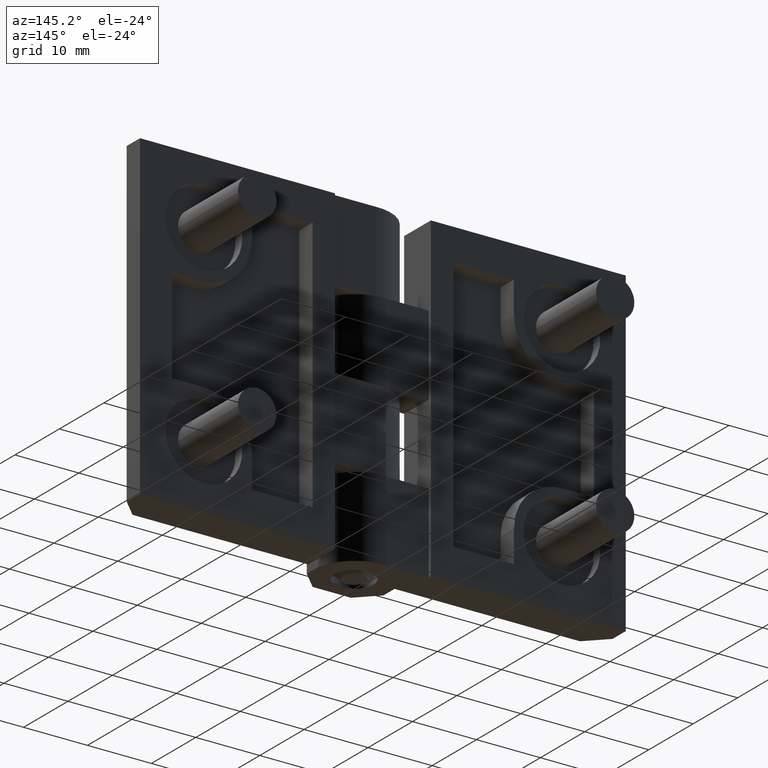
[diagram: clean part render]
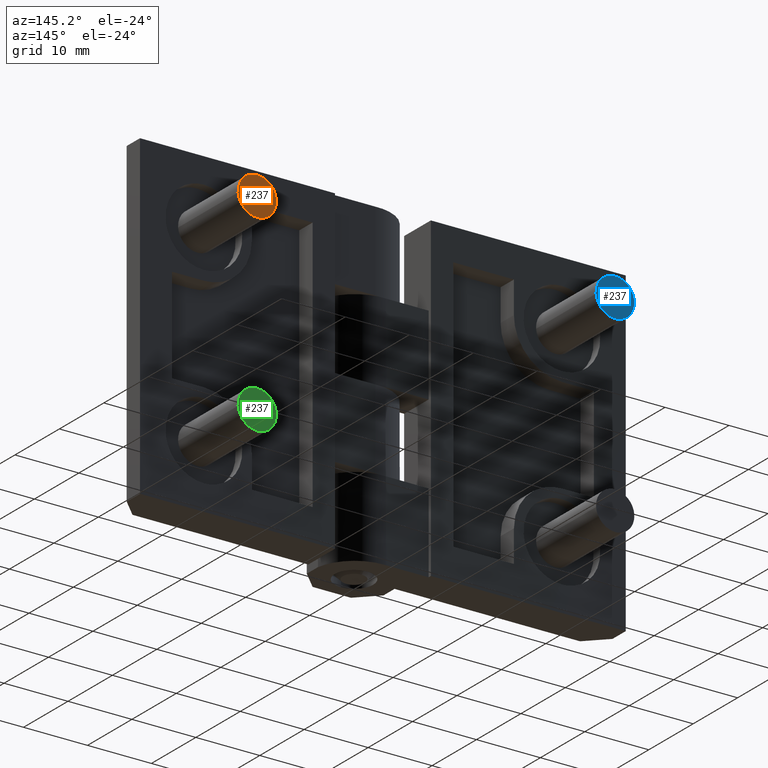
[diagram: same view with three faces highlighted in distinct colors, each labeled with its STEP entity id]
A machine part, auxiliary view with three faces highlighted in distinct colors.
Their STEP definitions:

[orange] entity #237 — the highlighted face is a freeform B-spline surface patch.
#62=CARTESIAN_POINT('',(-28.0,18.500000000000000,12.999999999939989));
#63=VERTEX_POINT('',#62);
#64=CARTESIAN_POINT('',(-30.990752001193002,18.500000000000000,10.235377287204649));
#65=VERTEX_POINT('',#64);
#66=CARTESIAN_POINT('',(-28.0,18.500000000000000,12.999999999939989));
#67=CARTESIAN_POINT('',(-30.773171474823705,18.499999999999996,12.999999999939991));
#68=CARTESIAN_POINT('',(-30.990752001192998,18.500000000000004,10.235377287204653));
#76=(BOUNDED_CURVE()B_SPLINE_CURVE(2,(#66,#67,#68),.UNSPECIFIED.,.F.,.U.)B_SPLINE_CURVE_WITH_KNOTS((3,3),(0.0,0.236331300623467),.UNSPECIFIED.)CURVE()GEOMETRIC_REPRESENTATION_ITEM()RATIONAL_B_SPLINE_CURVE((1.0,0.723120658616093,0.969723356152407))REPRESENTATION_ITEM(''));
#77=EDGE_CURVE('',#63,#65,#76,.T.);
#118=CARTESIAN_POINT('',(-25.009247998806998,18.500000000000000,9.764622712675324));
#119=VERTEX_POINT('',#118);
#125=CARTESIAN_POINT('',(-25.009247998806998,18.499999999999996,9.764622712675324));
#126=CARTESIAN_POINT('',(-25.0,18.499999999999996,9.882129678835476));
#127=CARTESIAN_POINT('',(-25.0,18.500000000000000,9.999999999939989));
#128=CARTESIAN_POINT('',(-25.0,18.500000000000000,12.999999999939988));
#129=CARTESIAN_POINT('',(-28.0,18.500000000000000,12.999999999939989));
#137=(BOUNDED_CURVE()B_SPLINE_CURVE(2,(#125,#126,#127,#128,#129),.UNSPECIFIED.,.F.,.U.)B_SPLINE_CURVE_WITH_KNOTS((3,2,3),(0.736331300623467,0.750000000000000,1.0),.UNSPECIFIED.)CURVE()GEOMETRIC_REPRESENTATION_ITEM()RATIONAL_B_SPLINE_CURVE((0.969723356152407,0.983986122570455,1.0,0.707106781186548,1.0))REPRESENTATION_ITEM(''));
#138=EDGE_CURVE('',#119,#63,#137,.T.);
#161=CARTESIAN_POINT('',(-28.0,18.500000000000000,6.999999999939989));
#162=VERTEX_POINT('',#161);
#163=CARTESIAN_POINT('',(-30.990752001193002,18.499999999999996,10.235377287204653));
#164=CARTESIAN_POINT('',(-30.999999999999996,18.500000000000004,10.117870321044503));
#165=CARTESIAN_POINT('',(-31.0,18.500000000000000,9.999999999939989));
#166=CARTESIAN_POINT('',(-31.000000000000007,18.500000000000000,6.999999999939988));
#167=CARTESIAN_POINT('',(-28.0,18.500000000000000,6.999999999939989));
#175=(BOUNDED_CURVE()B_SPLINE_CURVE(2,(#163,#164,#165,#166,#167),.UNSPECIFIED.,.F.,.U.)B_SPLINE_CURVE_WITH_KNOTS((3,2,3),(0.236331300623467,0.250000000000000,0.500000000000000),.UNSPECIFIED.)CURVE()GEOMETRIC_REPRESENTATION_ITEM()RATIONAL_B_SPLINE_CURVE((0.969723356152407,0.983986122570455,1.0,0.707106781186548,1.0))REPRESENTATION_ITEM(''));
#176=EDGE_CURVE('',#65,#162,#175,.T.);
#178=CARTESIAN_POINT('',(-28.0,18.500000000000000,6.999999999939989));
#179=CARTESIAN_POINT('',(-25.226828525176295,18.500000000000000,6.999999999939989));
#180=CARTESIAN_POINT('',(-25.009247998806998,18.500000000000000,9.764622712675324));
#188=(BOUNDED_CURVE()B_SPLINE_CURVE(2,(#178,#179,#180),.UNSPECIFIED.,.F.,.U.)B_SPLINE_CURVE_WITH_KNOTS((3,3),(0.500000000000000,0.736331300623467),.UNSPECIFIED.)CURVE()GEOMETRIC_REPRESENTATION_ITEM()RATIONAL_B_SPLINE_CURVE((1.0,0.723120658616092,0.969723356152407))REPRESENTATION_ITEM(''));
#189=EDGE_CURVE('',#162,#119,#188,.T.);
#226=CARTESIAN_POINT('',(-31.298783236368472,18.500000000000000,13.299699988310829));
#227=CARTESIAN_POINT('',(-24.701216978208251,18.500000000000000,13.299699988310829));
#228=CARTESIAN_POINT('',(-31.298783236368472,18.500000000000000,6.700299850636613));
#229=CARTESIAN_POINT('',(-24.701216978208251,18.500000000000000,6.700299850636613));
#230=B_SPLINE_SURFACE_WITH_KNOTS('',1,1,((#226,#228),(#227,#229)),.UNSPECIFIED.,.F.,.F.,.U.,(2,2),(2,2),(0.0,6.597566258160221),(0.0,6.599400137674213),.UNSPECIFIED.);
#231=ORIENTED_EDGE('',*,*,#138,.F.);
#232=ORIENTED_EDGE('',*,*,#189,.F.);
#233=ORIENTED_EDGE('',*,*,#176,.F.);
#234=ORIENTED_EDGE('',*,*,#77,.F.);
#235=EDGE_LOOP('',(#231,#232,#233,#234));
#236=FACE_OUTER_BOUND('',#235,.T.);
#237=ADVANCED_FACE('',(#236),#230,.T.);

[blue] entity #237 — the highlighted face is a freeform B-spline surface patch.
#62=CARTESIAN_POINT('',(-28.0,18.500000000000000,12.999999999939989));
#63=VERTEX_POINT('',#62);
#64=CARTESIAN_POINT('',(-30.990752001193002,18.500000000000000,10.235377287204649));
#65=VERTEX_POINT('',#64);
#66=CARTESIAN_POINT('',(-28.0,18.500000000000000,12.999999999939989));
#67=CARTESIAN_POINT('',(-30.773171474823705,18.499999999999996,12.999999999939991));
#68=CARTESIAN_POINT('',(-30.990752001192998,18.500000000000004,10.235377287204653));
#76=(BOUNDED_CURVE()B_SPLINE_CURVE(2,(#66,#67,#68),.UNSPECIFIED.,.F.,.U.)B_SPLINE_CURVE_WITH_KNOTS((3,3),(0.0,0.236331300623467),.UNSPECIFIED.)CURVE()GEOMETRIC_REPRESENTATION_ITEM()RATIONAL_B_SPLINE_CURVE((1.0,0.723120658616093,0.969723356152407))REPRESENTATION_ITEM(''));
#77=EDGE_CURVE('',#63,#65,#76,.T.);
#118=CARTESIAN_POINT('',(-25.009247998806998,18.500000000000000,9.764622712675324));
#119=VERTEX_POINT('',#118);
#125=CARTESIAN_POINT('',(-25.009247998806998,18.499999999999996,9.764622712675324));
#126=CARTESIAN_POINT('',(-25.0,18.499999999999996,9.882129678835476));
#127=CARTESIAN_POINT('',(-25.0,18.500000000000000,9.999999999939989));
#128=CARTESIAN_POINT('',(-25.0,18.500000000000000,12.999999999939988));
#129=CARTESIAN_POINT('',(-28.0,18.500000000000000,12.999999999939989));
#137=(BOUNDED_CURVE()B_SPLINE_CURVE(2,(#125,#126,#127,#128,#129),.UNSPECIFIED.,.F.,.U.)B_SPLINE_CURVE_WITH_KNOTS((3,2,3),(0.736331300623467,0.750000000000000,1.0),.UNSPECIFIED.)CURVE()GEOMETRIC_REPRESENTATION_ITEM()RATIONAL_B_SPLINE_CURVE((0.969723356152407,0.983986122570455,1.0,0.707106781186548,1.0))REPRESENTATION_ITEM(''));
#138=EDGE_CURVE('',#119,#63,#137,.T.);
#161=CARTESIAN_POINT('',(-28.0,18.500000000000000,6.999999999939989));
#162=VERTEX_POINT('',#161);
#163=CARTESIAN_POINT('',(-30.990752001193002,18.499999999999996,10.235377287204653));
#164=CARTESIAN_POINT('',(-30.999999999999996,18.500000000000004,10.117870321044503));
#165=CARTESIAN_POINT('',(-31.0,18.500000000000000,9.999999999939989));
#166=CARTESIAN_POINT('',(-31.000000000000007,18.500000000000000,6.999999999939988));
#167=CARTESIAN_POINT('',(-28.0,18.500000000000000,6.999999999939989));
#175=(BOUNDED_CURVE()B_SPLINE_CURVE(2,(#163,#164,#165,#166,#167),.UNSPECIFIED.,.F.,.U.)B_SPLINE_CURVE_WITH_KNOTS((3,2,3),(0.236331300623467,0.250000000000000,0.500000000000000),.UNSPECIFIED.)CURVE()GEOMETRIC_REPRESENTATION_ITEM()RATIONAL_B_SPLINE_CURVE((0.969723356152407,0.983986122570455,1.0,0.707106781186548,1.0))REPRESENTATION_ITEM(''));
#176=EDGE_CURVE('',#65,#162,#175,.T.);
#178=CARTESIAN_POINT('',(-28.0,18.500000000000000,6.999999999939989));
#179=CARTESIAN_POINT('',(-25.226828525176295,18.500000000000000,6.999999999939989));
#180=CARTESIAN_POINT('',(-25.009247998806998,18.500000000000000,9.764622712675324));
#188=(BOUNDED_CURVE()B_SPLINE_CURVE(2,(#178,#179,#180),.UNSPECIFIED.,.F.,.U.)B_SPLINE_CURVE_WITH_KNOTS((3,3),(0.500000000000000,0.736331300623467),.UNSPECIFIED.)CURVE()GEOMETRIC_REPRESENTATION_ITEM()RATIONAL_B_SPLINE_CURVE((1.0,0.723120658616092,0.969723356152407))REPRESENTATION_ITEM(''));
#189=EDGE_CURVE('',#162,#119,#188,.T.);
#226=CARTESIAN_POINT('',(-31.298783236368472,18.500000000000000,13.299699988310829));
#227=CARTESIAN_POINT('',(-24.701216978208251,18.500000000000000,13.299699988310829));
#228=CARTESIAN_POINT('',(-31.298783236368472,18.500000000000000,6.700299850636613));
#229=CARTESIAN_POINT('',(-24.701216978208251,18.500000000000000,6.700299850636613));
#230=B_SPLINE_SURFACE_WITH_KNOTS('',1,1,((#226,#228),(#227,#229)),.UNSPECIFIED.,.F.,.F.,.U.,(2,2),(2,2),(0.0,6.597566258160221),(0.0,6.599400137674213),.UNSPECIFIED.);
#231=ORIENTED_EDGE('',*,*,#138,.F.);
#232=ORIENTED_EDGE('',*,*,#189,.F.);
#233=ORIENTED_EDGE('',*,*,#176,.F.);
#234=ORIENTED_EDGE('',*,*,#77,.F.);
#235=EDGE_LOOP('',(#231,#232,#233,#234));
#236=FACE_OUTER_BOUND('',#235,.T.);
#237=ADVANCED_FACE('',(#236),#230,.T.);

[green] entity #237 — the highlighted face is a freeform B-spline surface patch.
#62=CARTESIAN_POINT('',(-28.0,18.500000000000000,12.999999999939989));
#63=VERTEX_POINT('',#62);
#64=CARTESIAN_POINT('',(-30.990752001193002,18.500000000000000,10.235377287204649));
#65=VERTEX_POINT('',#64);
#66=CARTESIAN_POINT('',(-28.0,18.500000000000000,12.999999999939989));
#67=CARTESIAN_POINT('',(-30.773171474823705,18.499999999999996,12.999999999939991));
#68=CARTESIAN_POINT('',(-30.990752001192998,18.500000000000004,10.235377287204653));
#76=(BOUNDED_CURVE()B_SPLINE_CURVE(2,(#66,#67,#68),.UNSPECIFIED.,.F.,.U.)B_SPLINE_CURVE_WITH_KNOTS((3,3),(0.0,0.236331300623467),.UNSPECIFIED.)CURVE()GEOMETRIC_REPRESENTATION_ITEM()RATIONAL_B_SPLINE_CURVE((1.0,0.723120658616093,0.969723356152407))REPRESENTATION_ITEM(''));
#77=EDGE_CURVE('',#63,#65,#76,.T.);
#118=CARTESIAN_POINT('',(-25.009247998806998,18.500000000000000,9.764622712675324));
#119=VERTEX_POINT('',#118);
#125=CARTESIAN_POINT('',(-25.009247998806998,18.499999999999996,9.764622712675324));
#126=CARTESIAN_POINT('',(-25.0,18.499999999999996,9.882129678835476));
#127=CARTESIAN_POINT('',(-25.0,18.500000000000000,9.999999999939989));
#128=CARTESIAN_POINT('',(-25.0,18.500000000000000,12.999999999939988));
#129=CARTESIAN_POINT('',(-28.0,18.500000000000000,12.999999999939989));
#137=(BOUNDED_CURVE()B_SPLINE_CURVE(2,(#125,#126,#127,#128,#129),.UNSPECIFIED.,.F.,.U.)B_SPLINE_CURVE_WITH_KNOTS((3,2,3),(0.736331300623467,0.750000000000000,1.0),.UNSPECIFIED.)CURVE()GEOMETRIC_REPRESENTATION_ITEM()RATIONAL_B_SPLINE_CURVE((0.969723356152407,0.983986122570455,1.0,0.707106781186548,1.0))REPRESENTATION_ITEM(''));
#138=EDGE_CURVE('',#119,#63,#137,.T.);
#161=CARTESIAN_POINT('',(-28.0,18.500000000000000,6.999999999939989));
#162=VERTEX_POINT('',#161);
#163=CARTESIAN_POINT('',(-30.990752001193002,18.499999999999996,10.235377287204653));
#164=CARTESIAN_POINT('',(-30.999999999999996,18.500000000000004,10.117870321044503));
#165=CARTESIAN_POINT('',(-31.0,18.500000000000000,9.999999999939989));
#166=CARTESIAN_POINT('',(-31.000000000000007,18.500000000000000,6.999999999939988));
#167=CARTESIAN_POINT('',(-28.0,18.500000000000000,6.999999999939989));
#175=(BOUNDED_CURVE()B_SPLINE_CURVE(2,(#163,#164,#165,#166,#167),.UNSPECIFIED.,.F.,.U.)B_SPLINE_CURVE_WITH_KNOTS((3,2,3),(0.236331300623467,0.250000000000000,0.500000000000000),.UNSPECIFIED.)CURVE()GEOMETRIC_REPRESENTATION_ITEM()RATIONAL_B_SPLINE_CURVE((0.969723356152407,0.983986122570455,1.0,0.707106781186548,1.0))REPRESENTATION_ITEM(''));
#176=EDGE_CURVE('',#65,#162,#175,.T.);
#178=CARTESIAN_POINT('',(-28.0,18.500000000000000,6.999999999939989));
#179=CARTESIAN_POINT('',(-25.226828525176295,18.500000000000000,6.999999999939989));
#180=CARTESIAN_POINT('',(-25.009247998806998,18.500000000000000,9.764622712675324));
#188=(BOUNDED_CURVE()B_SPLINE_CURVE(2,(#178,#179,#180),.UNSPECIFIED.,.F.,.U.)B_SPLINE_CURVE_WITH_KNOTS((3,3),(0.500000000000000,0.736331300623467),.UNSPECIFIED.)CURVE()GEOMETRIC_REPRESENTATION_ITEM()RATIONAL_B_SPLINE_CURVE((1.0,0.723120658616092,0.969723356152407))REPRESENTATION_ITEM(''));
#189=EDGE_CURVE('',#162,#119,#188,.T.);
#226=CARTESIAN_POINT('',(-31.298783236368472,18.500000000000000,13.299699988310829));
#227=CARTESIAN_POINT('',(-24.701216978208251,18.500000000000000,13.299699988310829));
#228=CARTESIAN_POINT('',(-31.298783236368472,18.500000000000000,6.700299850636613));
#229=CARTESIAN_POINT('',(-24.701216978208251,18.500000000000000,6.700299850636613));
#230=B_SPLINE_SURFACE_WITH_KNOTS('',1,1,((#226,#228),(#227,#229)),.UNSPECIFIED.,.F.,.F.,.U.,(2,2),(2,2),(0.0,6.597566258160221),(0.0,6.599400137674213),.UNSPECIFIED.);
#231=ORIENTED_EDGE('',*,*,#138,.F.);
#232=ORIENTED_EDGE('',*,*,#189,.F.);
#233=ORIENTED_EDGE('',*,*,#176,.F.);
#234=ORIENTED_EDGE('',*,*,#77,.F.);
#235=EDGE_LOOP('',(#231,#232,#233,#234));
#236=FACE_OUTER_BOUND('',#235,.T.);
#237=ADVANCED_FACE('',(#236),#230,.T.);